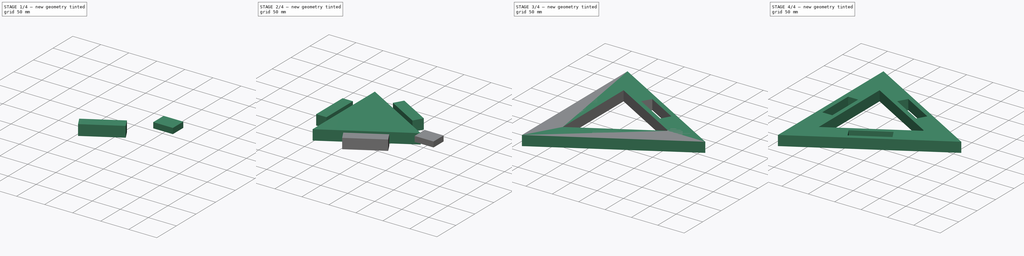
[diagram: build sequence overview — one tinted view per stage of 4, left to right]
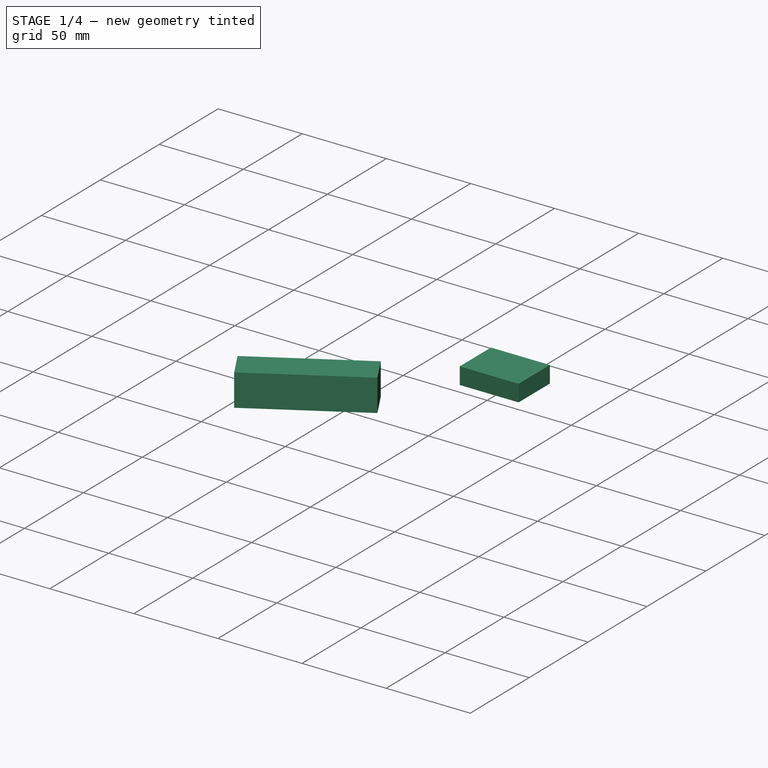
[diagram: stage 1 of 4 — iso view after this stage's code; geometry added in this stage tinted green]
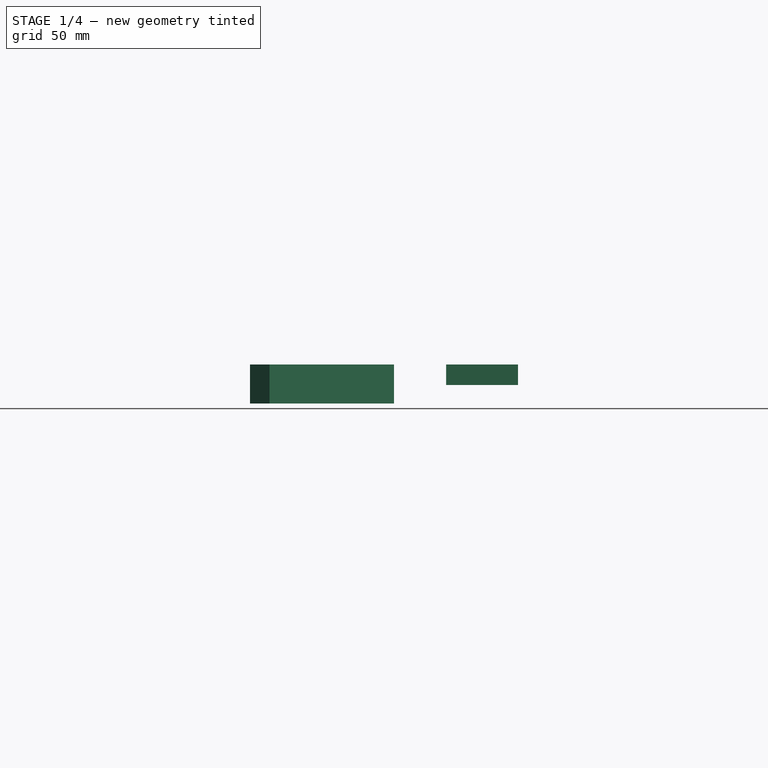
[diagram: stage 1 of 4 — front view after this stage's code; geometry added in this stage tinted green]
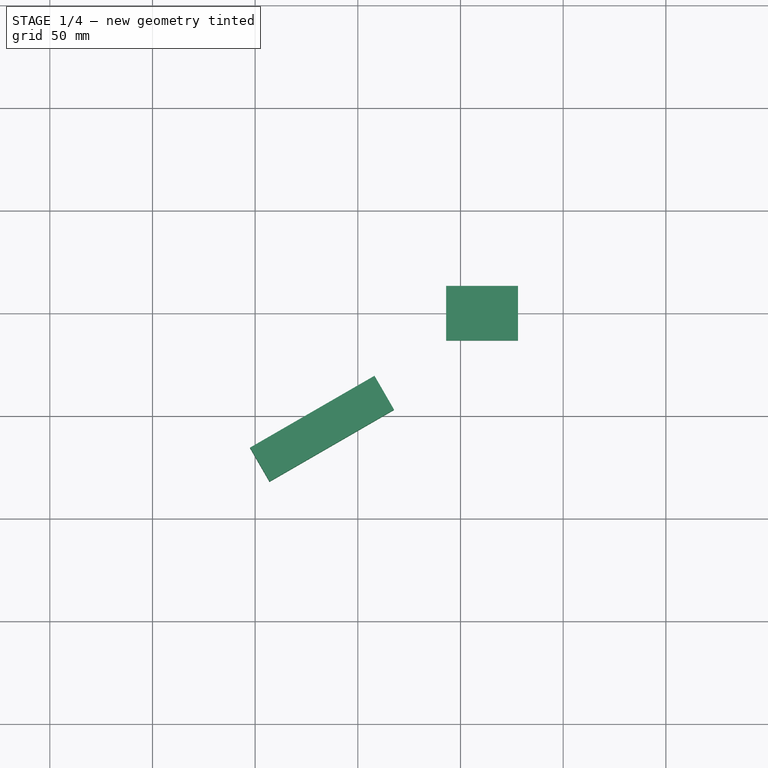
[diagram: stage 1 of 4 — top view after this stage's code; geometry added in this stage tinted green]
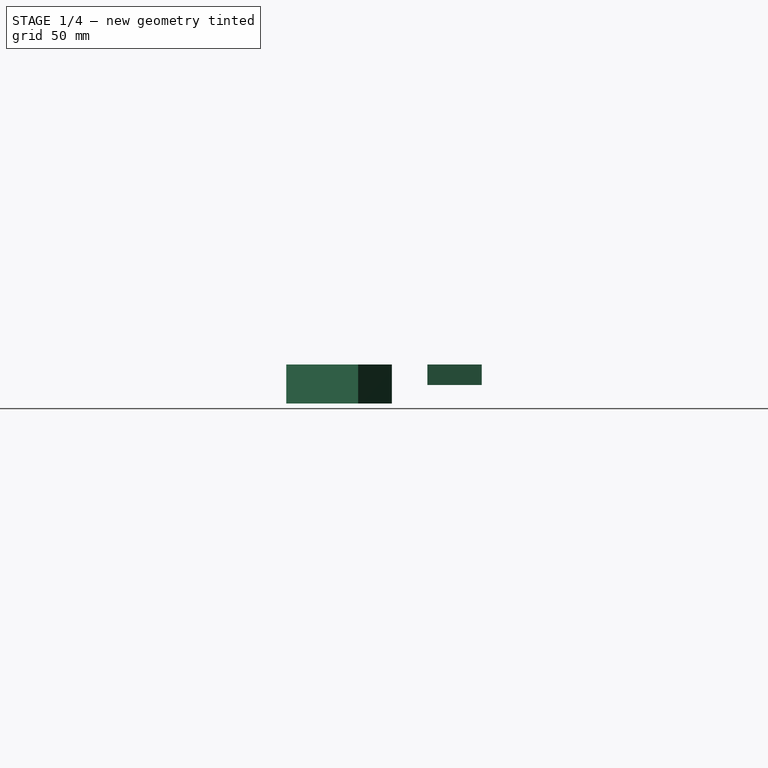
[diagram: stage 1 of 4 — right view after this stage's code; geometry added in this stage tinted green]
FCSTD DOCUMENT  (FreeCAD 0.15R4671 (Git))
Label: TechNicolor-Triangle-39-battery-test-Cut
License: All rights reserved
LicenseURL: http://en.wikipedia.org/wiki/All_rights_reserved
objects: Part::Cut×4, Part::Box×4, Part::Prism×2, Sketcher::SketchObject×1
note: 11 computed .brp shape members not serialized (recipe doc carries the construction recipe); baked Part::Feature solids carry a one-line shape summary decoded from their .brp

FEATURE [Part::Box] Box002
  Height = 19
  Length = 70
  Placement = pos=(7,-82,0) rot=(0,0,1;0.523599rad)
  Width = 19
FEATURE [Part::Box] Box003
  Height = 10
  Length = 35
  Placement = pos=(93,-13.3,9) rot=(0,0,1;0rad)
  Width = 26.5
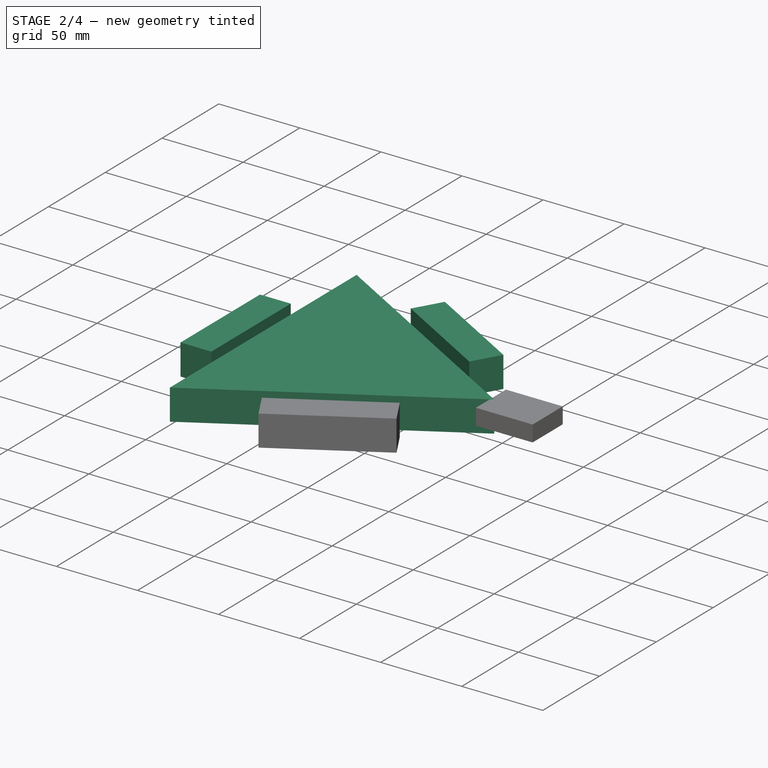
[diagram: stage 2 of 4 — iso view after this stage's code; geometry added in this stage tinted green]
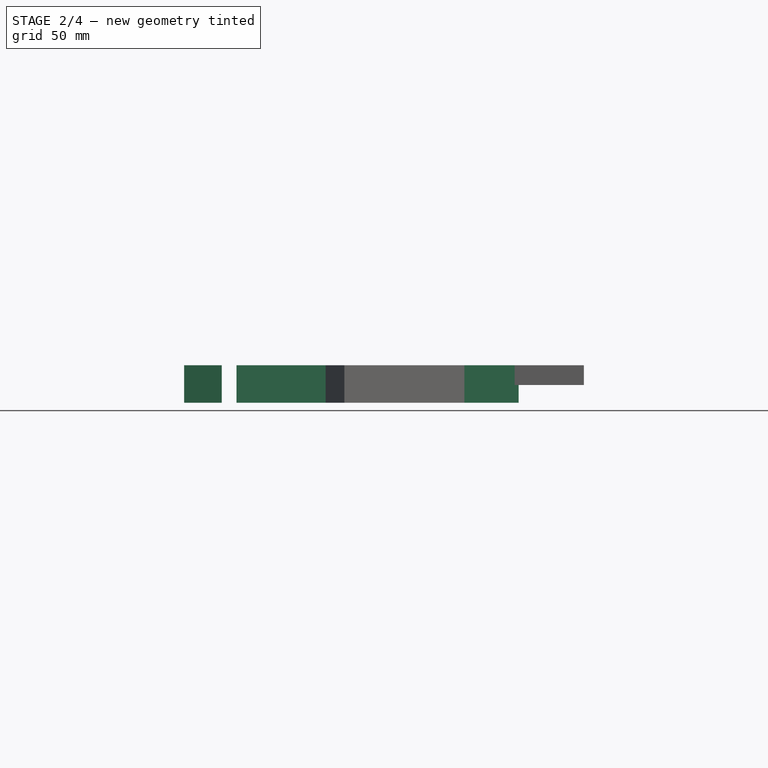
[diagram: stage 2 of 4 — front view after this stage's code; geometry added in this stage tinted green]
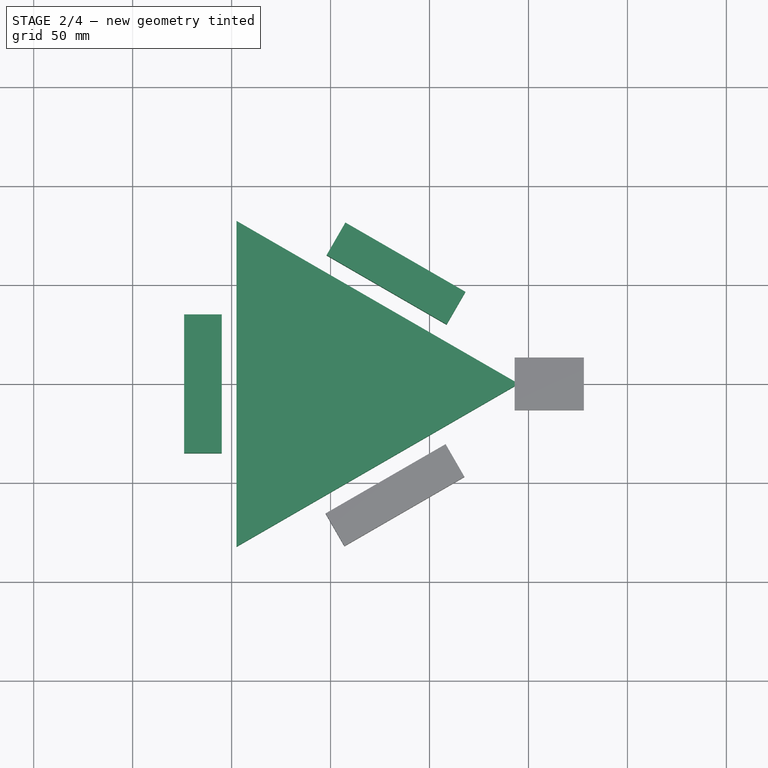
[diagram: stage 2 of 4 — top view after this stage's code; geometry added in this stage tinted green]
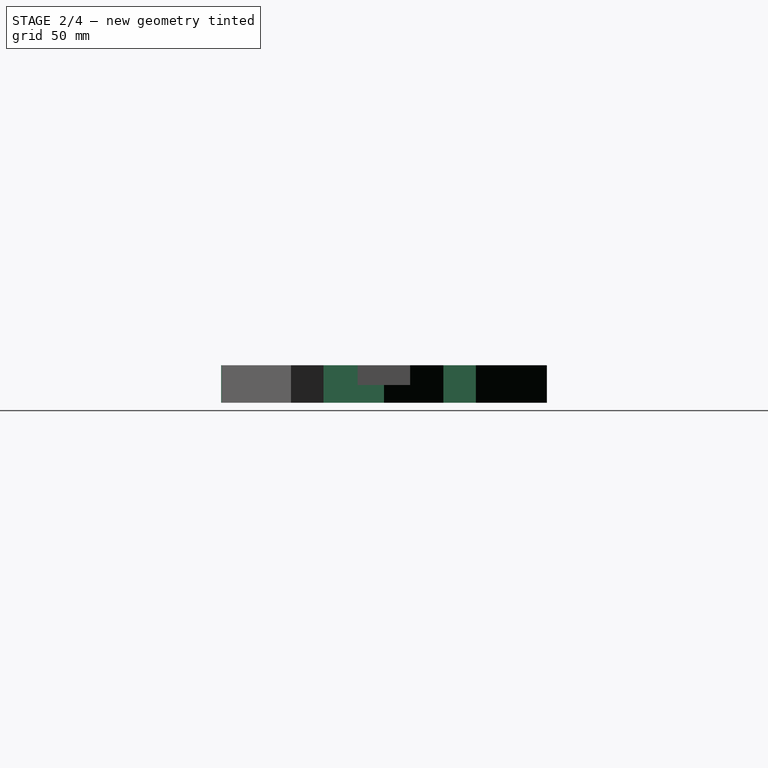
[diagram: stage 2 of 4 — right view after this stage's code; geometry added in this stage tinted green]
FEATURE [Part::Prism] Prism001
  Circumradius = 95
  Height = 19
  Polygon = 3
FEATURE [Sketcher::SketchObject] Sketch
  Placement = pos=(0,0,19) rot=(0,0,1;0rad)
  Support = -> Cut [Face5]
  sketch-geometry (8):
    g0: LineSegment StartX=-74.7277 StartY=38.2242 StartZ=0 EndX=-55.7277 EndY=38.2242 EndZ=0
    g1: LineSegment StartX=-55.7277 StartY=38.2242 StartZ=0 EndX=-55.7277 EndY=-36.7758 EndZ=0
    g2: LineSegment StartX=-55.7277 StartY=-36.7758 StartZ=0 EndX=-74.7277 EndY=-36.7758 EndZ=0
    g3: LineSegment StartX=-74.7277 StartY=-36.7758 StartZ=0 EndX=-74.7277 EndY=38.2242 EndZ=0
    g4: LineSegment StartX=78.5324 StartY=-15.442 StartZ=0 EndX=3.53238 EndY=-58.1438 EndZ=0
    g5: LineSegment StartX=3.53238 StartY=-58.1438 StartZ=0 EndX=14.3502 EndY=-77.1438 EndZ=0
    g6: LineSegment StartX=14.3502 StartY=-77.1438 StartZ=0 EndX=89.3502 EndY=-34.442 EndZ=0
    g7: LineSegment StartX=89.3502 StartY=-34.442 StartZ=0 EndX=78.5324 EndY=-15.442 EndZ=0
  constraints (22):
    c: Coincident(g0,g1)
    c: Coincident(g1,g2)
    c: Coincident(g2,g3)
    c: Coincident(g3,g0)
    c: Horizontal(g0)
    c: Vertical(g1)
    c: Parallel(g1,g3)
    c: Parallel(g0,g2)
    c: Equal(g0,g2)
    c: Equal(g1,g3)
    c: DistanceY(g3) = 75
    c: DistanceX(g2) = -19
    c: Coincident(g4,g5)
    c: Coincident(g5,g6)
    c: Coincident(g6,g7)
    c: Coincident(g7,g4)
    c: DistanceX(g4) = -75
    c: DistanceX(g6) = 75
    c: DistanceY(g7) = 19
    c: DistanceY(g5) = -19
    c: Angle(g4,g7) = 1.5708
    c: Angle(g6,g5) = 1.5708
FEATURE [Part::Box] Box
  Height = 19
  Length = 70
  Placement = pos=(-2,65,0) rot=(0,0,-1;0.523599rad)
  Width = 19
FEATURE [Part::Box] Box001
  Height = 19
  Length = 70
  Placement = pos=(-55,-35,0) rot=(0,0,1;1.5708rad)
  Width = 19
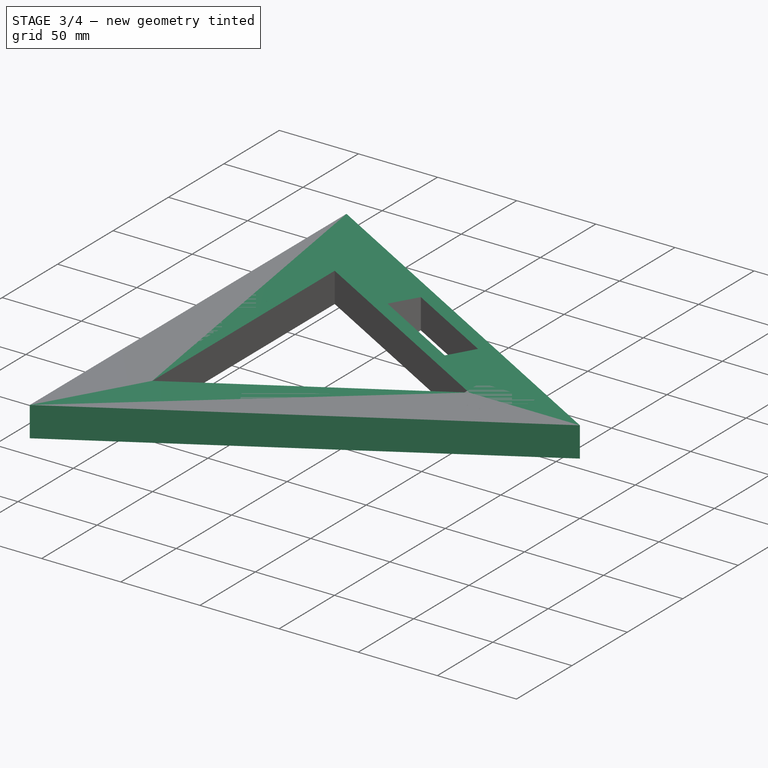
[diagram: stage 3 of 4 — iso view after this stage's code; geometry added in this stage tinted green]
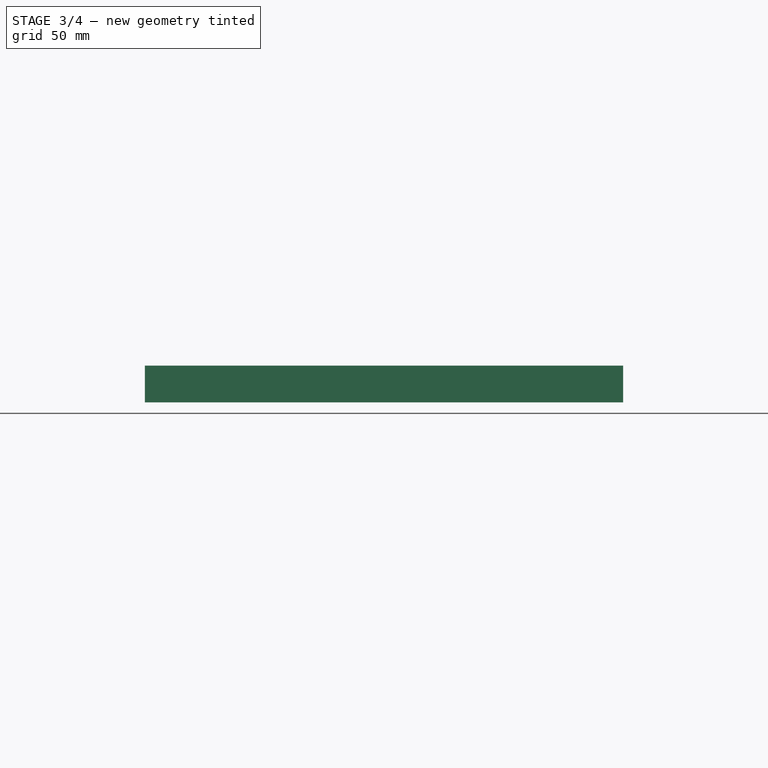
[diagram: stage 3 of 4 — front view after this stage's code; geometry added in this stage tinted green]
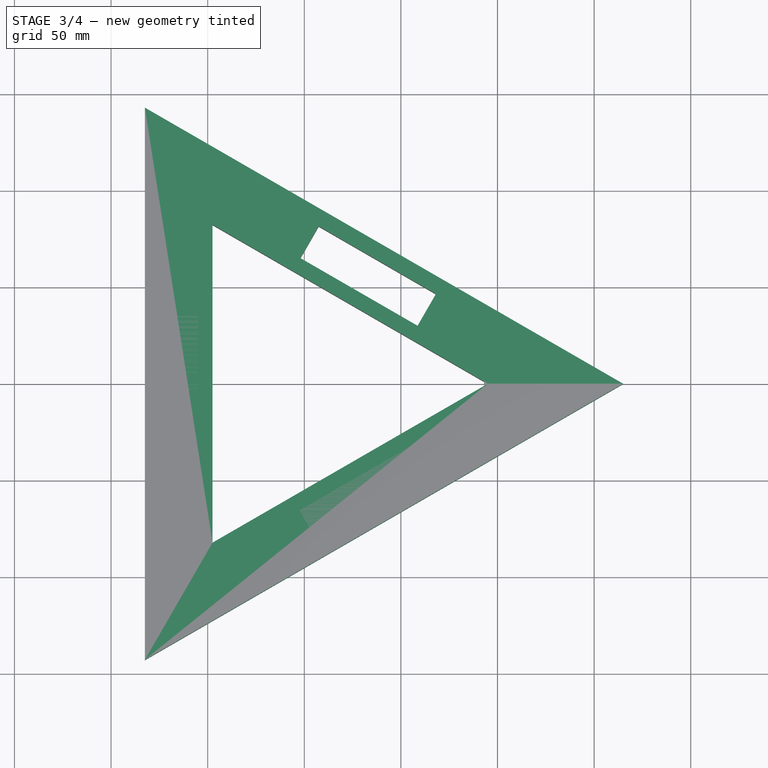
[diagram: stage 3 of 4 — top view after this stage's code; geometry added in this stage tinted green]
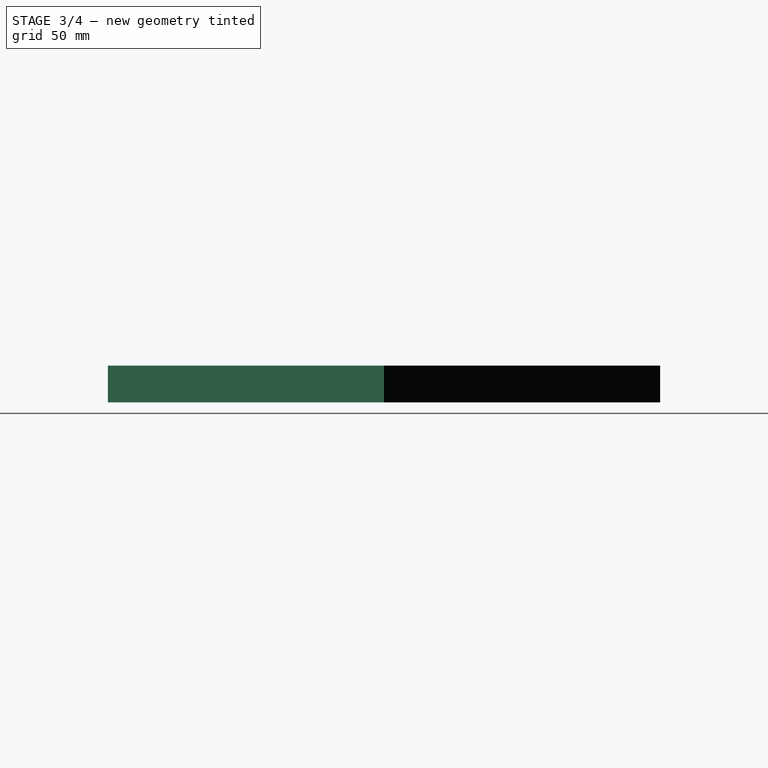
[diagram: stage 3 of 4 — right view after this stage's code; geometry added in this stage tinted green]
FEATURE [Part::Prism] Prism
  Circumradius = 165
  Height = 19
  Polygon = 3
FEATURE [Part::Cut] Cut
  Base = -> Prism
  Tool = -> Prism001
FEATURE [Part::Cut] Cut001
  Base = -> Cut
  Tool = -> Box
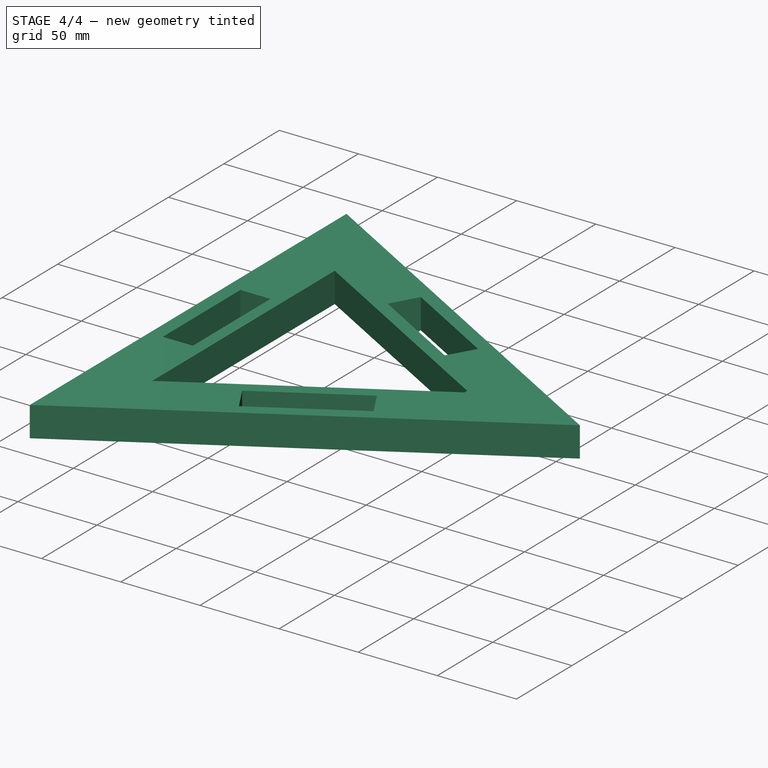
[diagram: stage 4 of 4 — iso view after this stage's code; geometry added in this stage tinted green]
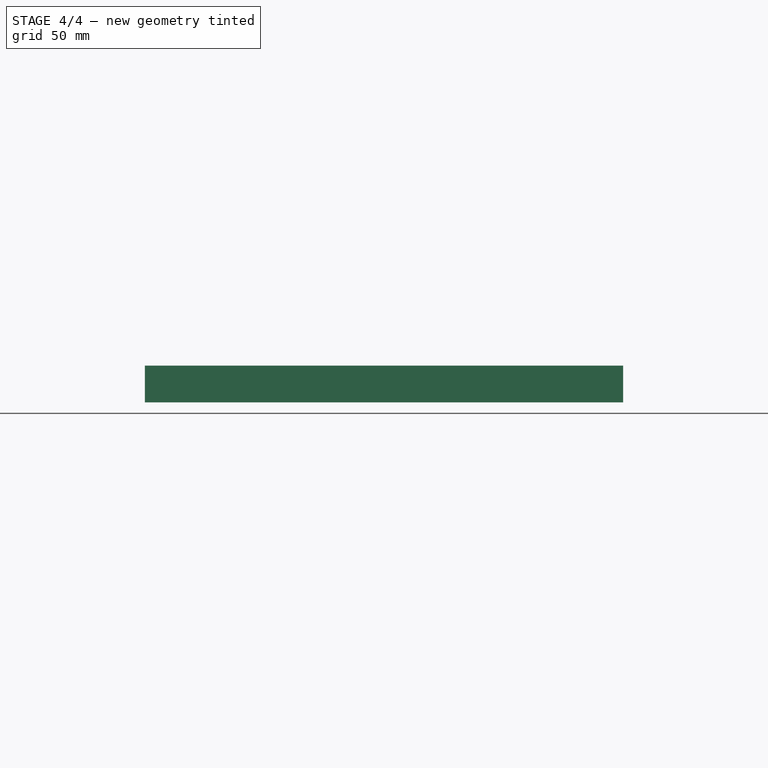
[diagram: stage 4 of 4 — front view after this stage's code; geometry added in this stage tinted green]
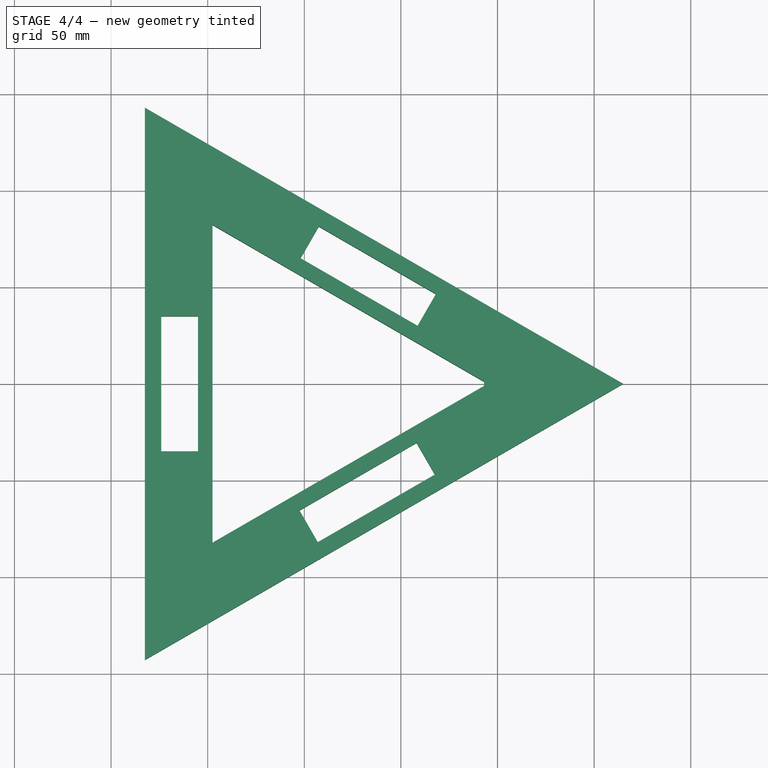
[diagram: stage 4 of 4 — top view after this stage's code; geometry added in this stage tinted green]
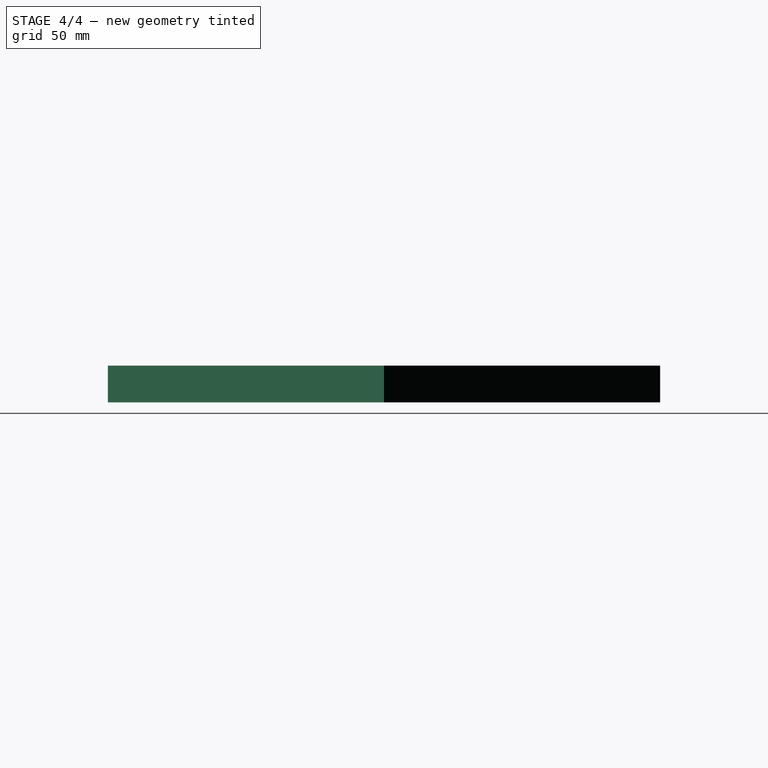
[diagram: stage 4 of 4 — right view after this stage's code; geometry added in this stage tinted green]
FEATURE [Part::Cut] Cut002
  Base = -> Cut001
  Tool = -> Box001
FEATURE [Part::Cut] Cut003
  Base = -> Cut002
  Tool = -> Box002
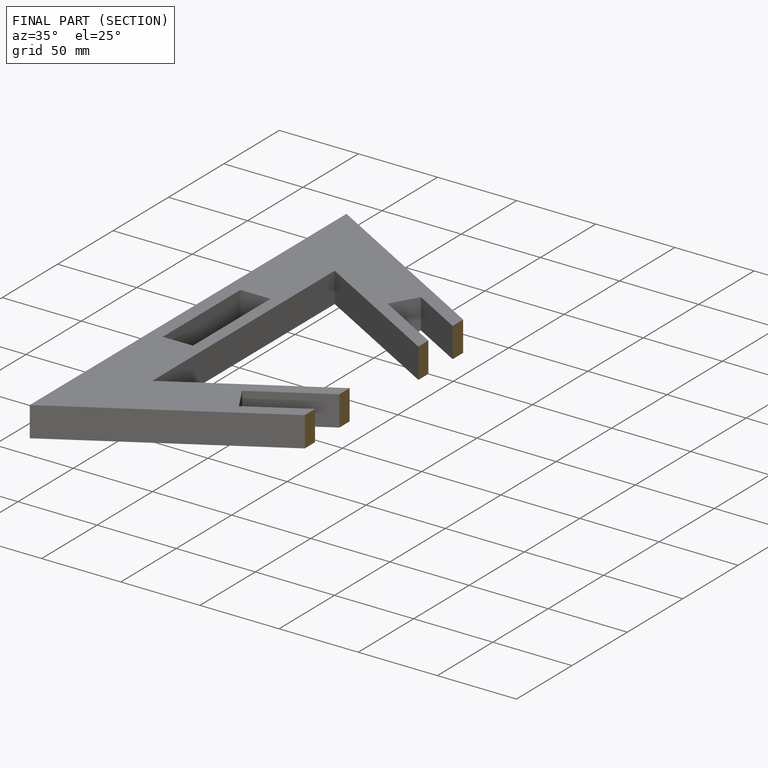
[diagram: finished part — half-section view (interior)]
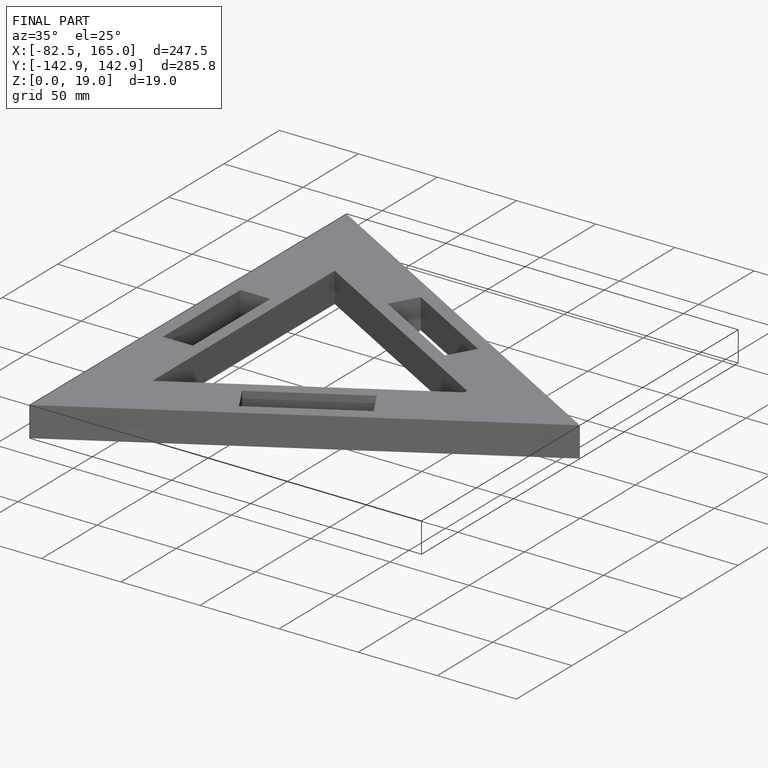
[diagram: finished part — iso view with bounding-box wireframe]
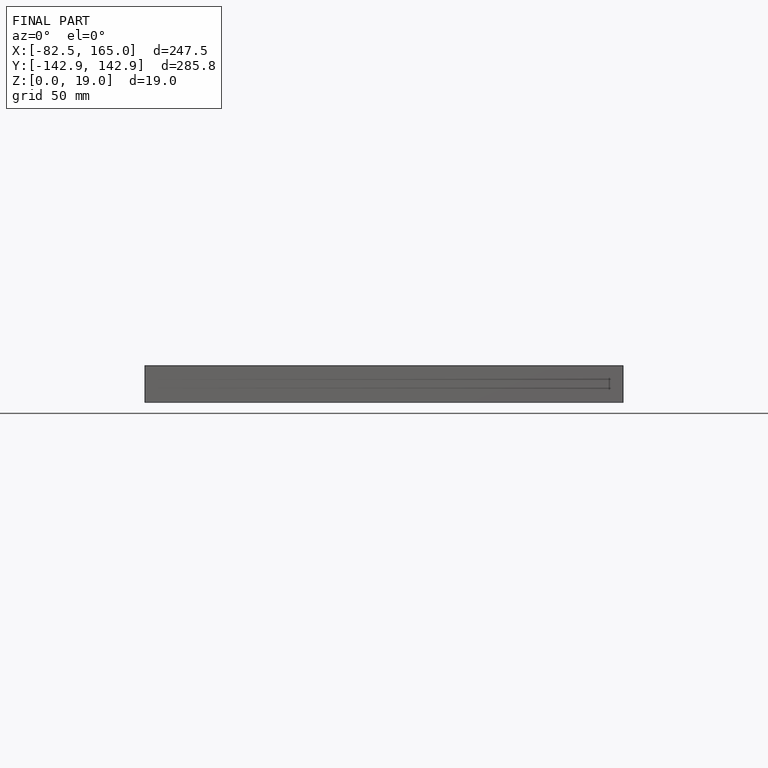
[diagram: finished part — front view with bounding-box wireframe]
